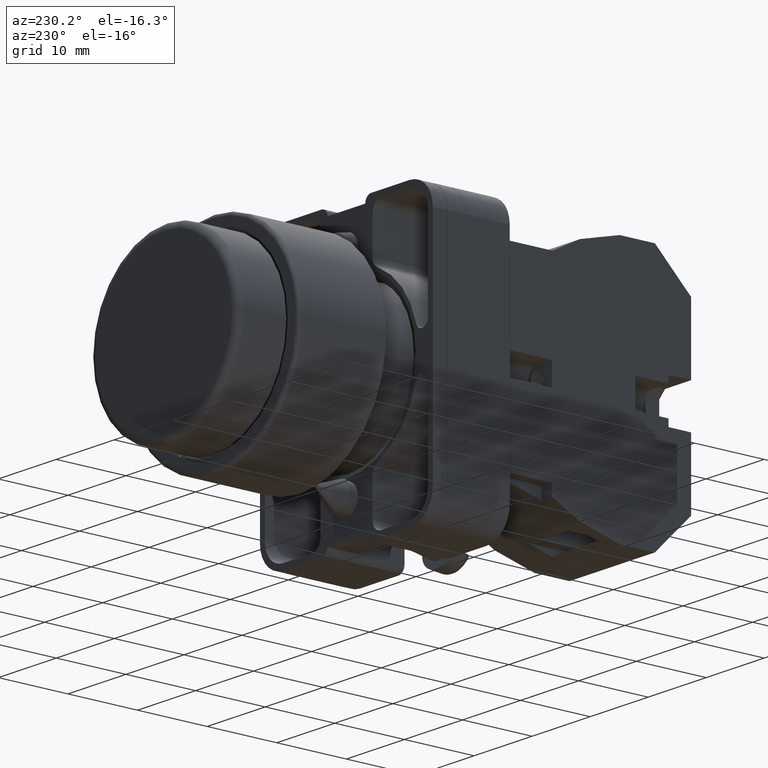
[diagram: clean part render]
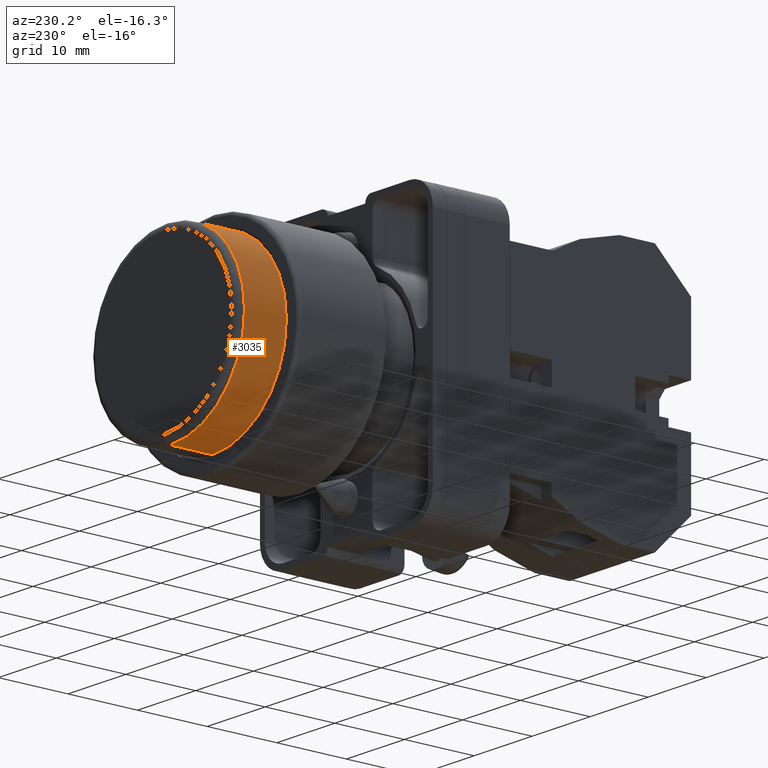
[diagram: same view with one face highlighted and labeled with its STEP entity id]
A machine part, auxiliary view. The second image highlights one B-rep face of the part: STEP entity #3035.
In plain terms, the highlighted cylindrical surface (partial cylindrical patch) has radius 12.75 mm, axis along (0, 1, 0).
Its self-contained STEP definition (entity closure, byte-faithful):
#4 = DIRECTION ( 'NONE',  ( 0.0000000000000000000, 0.0000000000000000000, 1.000000000000000000 ) ) ;
#208 = DIRECTION ( 'NONE',  ( 0.0000000000000000000, 1.000000000000000000, 0.0000000000000000000 ) ) ;
#307 = VERTEX_POINT ( 'NONE', #1338 ) ;
#885 = CARTESIAN_POINT ( 'NONE',  ( 0.0000000000000000000, 0.9409448818897636600, 0.0000000000000000000 ) ) ;
#1304 = DIRECTION ( 'NONE',  ( -0.0000000000000000000, -1.000000000000000000, -0.0000000000000000000 ) ) ;
#1338 = CARTESIAN_POINT ( 'NONE',  ( 6.147341216192422300E-017, 1.177165354330708600, -0.5019685039370078700 ) ) ;
#1608 = CARTESIAN_POINT ( 'NONE',  ( 6.147341216192422300E-017, 0.9409448818897636600, -0.5019685039370078700 ) ) ;
#1647 = EDGE_CURVE ( 'NONE', #1859, #307, #2393, .T. ) ;
#1729 = LINE ( 'NONE', #9651, #11940 ) ;
#1859 = VERTEX_POINT ( 'NONE', #7508 ) ;
#1877 = DIRECTION ( 'NONE',  ( 0.0000000000000000000, 0.0000000000000000000, -1.000000000000000000 ) ) ;
#2057 = EDGE_CURVE ( 'NONE', #7850, #11509, #12607, .T. ) ;
#2134 = CARTESIAN_POINT ( 'NONE',  ( 6.147341216192422300E-017, -0.4788364504139340200, -0.5019685039370078700 ) ) ;
#2140 = AXIS2_PLACEMENT_3D ( 'NONE', #7852, #6894, #4 ) ;
#2393 = CIRCLE ( 'NONE', #11956, 0.5019685039370078700 ) ;
#2824 = VECTOR ( 'NONE', #208, 39.37007874015748100 ) ;
#2956 = ORIENTED_EDGE ( 'NONE', *, *, #10725, .F. ) ;
#2976 = FACE_OUTER_BOUND ( 'NONE', #4118, .T. ) ;
#3035 = ADVANCED_FACE ( 'NONE', ( #2976 ), #6684, .T. ) ;
#3515 = CARTESIAN_POINT ( 'NONE',  ( 0.0000000000000000000, 0.9409448818897636600, 0.5019685039370078700 ) ) ;
#3552 = ORIENTED_EDGE ( 'NONE', *, *, #1647, .T. ) ;
#4118 = EDGE_LOOP ( 'NONE', ( #2956, #11899, #11132, #3552 ) ) ;
#5778 = DIRECTION ( 'NONE',  ( 0.0000000000000000000, 1.000000000000000000, 0.0000000000000000000 ) ) ;
#6684 = CYLINDRICAL_SURFACE ( 'NONE', #2140, 0.5019685039370078700 ) ;
#6894 = DIRECTION ( 'NONE',  ( 0.0000000000000000000, 1.000000000000000000, 0.0000000000000000000 ) ) ;
#7228 = CARTESIAN_POINT ( 'NONE',  ( 0.0000000000000000000, 1.177165354330708600, 0.0000000000000000000 ) ) ;
#7508 = CARTESIAN_POINT ( 'NONE',  ( 0.0000000000000000000, 1.177165354330708600, 0.5019685039370078700 ) ) ;
#7798 = DIRECTION ( 'NONE',  ( -0.0000000000000000000, 1.000000000000000000, -0.0000000000000000000 ) ) ;
#7850 = VERTEX_POINT ( 'NONE', #1608 ) ;
#7852 = CARTESIAN_POINT ( 'NONE',  ( 0.0000000000000000000, -0.4788364504139340200, 0.0000000000000000000 ) ) ;
#8239 = DIRECTION ( 'NONE',  ( 0.0000000000000000000, 0.0000000000000000000, 1.000000000000000000 ) ) ;
#9651 = CARTESIAN_POINT ( 'NONE',  ( 0.0000000000000000000, -0.4788364504139340200, 0.5019685039370078700 ) ) ;
#10140 = AXIS2_PLACEMENT_3D ( 'NONE', #885, #7798, #1877 ) ;
#10707 = LINE ( 'NONE', #2134, #2824 ) ;
#10725 = EDGE_CURVE ( 'NONE', #7850, #307, #10707, .T. ) ;
#11119 = EDGE_CURVE ( 'NONE', #11509, #1859, #1729, .T. ) ;
#11132 = ORIENTED_EDGE ( 'NONE', *, *, #11119, .T. ) ;
#11509 = VERTEX_POINT ( 'NONE', #3515 ) ;
#11899 = ORIENTED_EDGE ( 'NONE', *, *, #2057, .T. ) ;
#11940 = VECTOR ( 'NONE', #5778, 39.37007874015748100 ) ;
#11956 = AXIS2_PLACEMENT_3D ( 'NONE', #7228, #1304, #8239 ) ;
#12607 = CIRCLE ( 'NONE', #10140, 0.5019685039370078700 ) ;